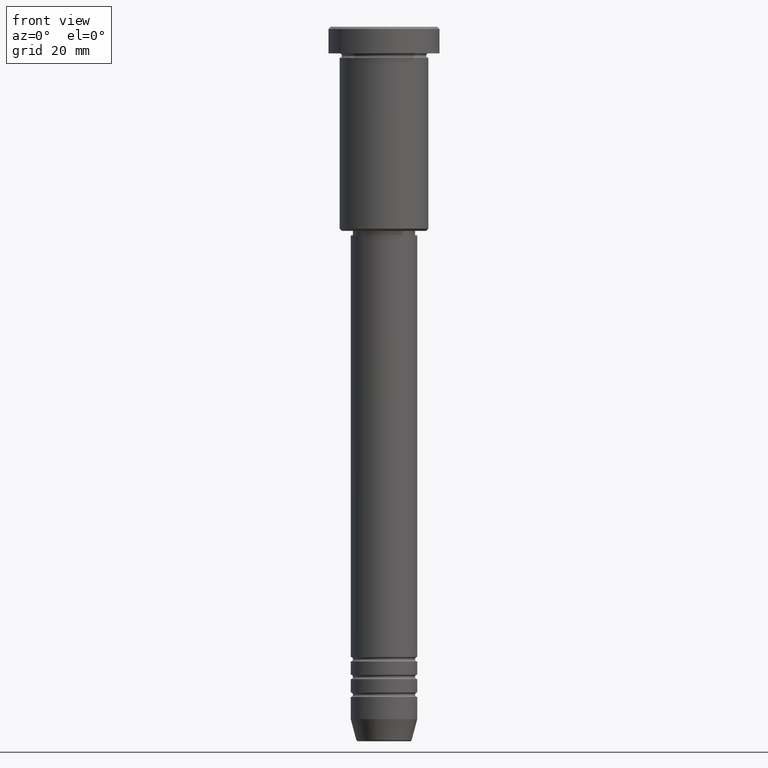
[diagram: clean part render]
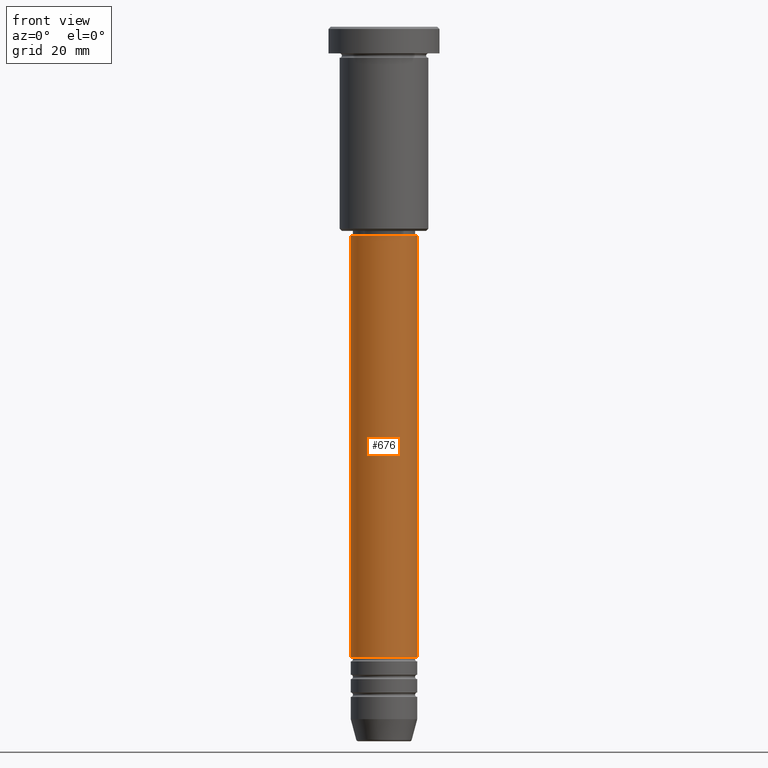
[diagram: same view with one face highlighted and labeled with its STEP entity id]
A machine part, front view. The second image highlights one B-rep face of the part: STEP entity #676.
In plain terms, the highlighted cylindrical surface (edge-blend (fillet) strip) has radius 7.5 mm, axis along (-0, -0, 1).
Its self-contained STEP definition (entity closure, byte-faithful):
#37 = LINE ( 'NONE', #850, #409 ) ;
#52 = VECTOR ( 'NONE', #438, 1000.000000000000000 ) ;
#56 = EDGE_CURVE ( 'NONE', #790, #61, #37, .T. ) ;
#61 = VERTEX_POINT ( 'NONE', #672 ) ;
#62 = LINE ( 'NONE', #1028, #52 ) ;
#88 = DIRECTION ( 'NONE',  ( -0.000000000000000000, -0.000000000000000000, 1.000000000000000000 ) ) ;
#148 = CIRCLE ( 'NONE', #803, 7.500000000000000888 ) ;
#170 = EDGE_CURVE ( 'NONE', #790, #257, #148, .T. ) ;
#194 = ORIENTED_EDGE ( 'NONE', *, *, #170, .T. ) ;
#207 = CIRCLE ( 'NONE', #365, 7.500000000000000000 ) ;
#257 = VERTEX_POINT ( 'NONE', #1052 ) ;
#266 = DIRECTION ( 'NONE',  ( 1.000000000000000000, 0.000000000000000000, 0.000000000000000000 ) ) ;
#283 = EDGE_LOOP ( 'NONE', ( #441, #194, #851, #994 ) ) ;
#300 = DIRECTION ( 'NONE',  ( -0.000000000000000000, -0.000000000000000000, 1.000000000000000000 ) ) ;
#365 = AXIS2_PLACEMENT_3D ( 'NONE', #732, #1116, #1107 ) ;
#409 = VECTOR ( 'NONE', #300, 1000.000000000000000 ) ;
#438 = DIRECTION ( 'NONE',  ( -0.000000000000000000, -0.000000000000000000, 1.000000000000000000 ) ) ;
#441 = ORIENTED_EDGE ( 'NONE', *, *, #56, .F. ) ;
#614 = CARTESIAN_POINT ( 'NONE',  ( 0.000000000000000000, 0.000000000000000000, 0.000000000000000000 ) ) ;
#619 = CARTESIAN_POINT ( 'NONE',  ( 7.500000000000000000, 0.000000000000000000, -47.00000000000000711 ) ) ;
#672 = CARTESIAN_POINT ( 'NONE',  ( -7.500000000000000000, 9.184850993605147944E-16, -47.00000000000000711 ) ) ;
#676 = ADVANCED_FACE ( 'NONE', ( #965 ), #712, .T. ) ;
#712 = CYLINDRICAL_SURFACE ( 'NONE', #822, 7.500000000000000000 ) ;
#732 = CARTESIAN_POINT ( 'NONE',  ( 0.000000000000000000, 0.000000000000000000, -47.00000000000000711 ) ) ;
#744 = VERTEX_POINT ( 'NONE', #619 ) ;
#778 = CARTESIAN_POINT ( 'NONE',  ( 0.000000000000000000, 0.000000000000000000, -141.9999999999999147 ) ) ;
#790 = VERTEX_POINT ( 'NONE', #987 ) ;
#803 = AXIS2_PLACEMENT_3D ( 'NONE', #778, #863, #883 ) ;
#822 = AXIS2_PLACEMENT_3D ( 'NONE', #614, #88, #266 ) ;
#834 = EDGE_CURVE ( 'NONE', #61, #744, #207, .T. ) ;
#850 = CARTESIAN_POINT ( 'NONE',  ( -7.500000000000000000, 9.184850993605147944E-16, 0.000000000000000000 ) ) ;
#851 = ORIENTED_EDGE ( 'NONE', *, *, #1062, .T. ) ;
#863 = DIRECTION ( 'NONE',  ( -0.000000000000000000, -0.000000000000000000, 1.000000000000000000 ) ) ;
#883 = DIRECTION ( 'NONE',  ( 1.000000000000000000, 0.000000000000000000, 0.000000000000000000 ) ) ;
#965 = FACE_OUTER_BOUND ( 'NONE', #283, .T. ) ;
#987 = CARTESIAN_POINT ( 'NONE',  ( -7.500000000000001776, 9.184850993605149917E-16, -141.9999999999999147 ) ) ;
#994 = ORIENTED_EDGE ( 'NONE', *, *, #834, .F. ) ;
#1028 = CARTESIAN_POINT ( 'NONE',  ( 7.500000000000000000, 0.000000000000000000, 0.000000000000000000 ) ) ;
#1052 = CARTESIAN_POINT ( 'NONE',  ( 7.500000000000000888, 0.000000000000000000, -141.9999999999999147 ) ) ;
#1062 = EDGE_CURVE ( 'NONE', #257, #744, #62, .T. ) ;
#1107 = DIRECTION ( 'NONE',  ( 1.000000000000000000, 0.000000000000000000, 0.000000000000000000 ) ) ;
#1116 = DIRECTION ( 'NONE',  ( -0.000000000000000000, -0.000000000000000000, 1.000000000000000000 ) ) ;